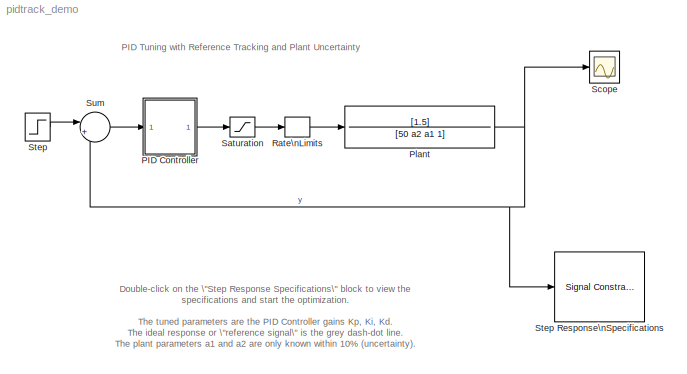
MODEL pidtrack_demo
KIND model
CONFIG PreLoadFcn = load pidtrack_demo
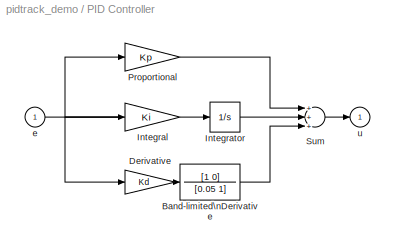
BLOCK [SubSystem] PID Controller
  MinAlgLoopOccurrences = off
  Ports = [1, 1]
  PropExecContextAcrossSSBoundary = on
  RTWSystemCode = Auto
  TreatAsAtomicUnit = off
BLOCK [TransferFcn] PID Controller/Band-limited\nDerivative
  Denominator = [0.05 1]
  Numerator = [1 0]
BLOCK [Gain] PID Controller/Derivative
  Gain = Kd
BLOCK [Gain] PID Controller/Integral
  Gain = Ki
BLOCK [Integrator] PID Controller/Integrator
  Ports = [1, 1]
BLOCK [Gain] PID Controller/Proportional
  Gain = Kp
BLOCK [Sum] PID Controller/Sum
  Inputs = +++
  Ports = [3, 1]
BLOCK [Inport] PID Controller/e
  IconDisplay = Port number
  LatchInput = off
BLOCK [Outport] PID Controller/u
  BusOutputAsStruct = off
  IconDisplay = Port number
  InitialOutput = 0
BLOCK [TransferFcn] Plant
  Denominator = [50 a2 a1 1]
  Numerator = [1.5]
BLOCK [RateLimiter] Rate\nLimits
  FallingSlewLimit = -0.8
  RisingSlewLimit = 0.8
BLOCK [Saturate] Saturation
  LowerLimit = -2
  UpperLimit = 2
BLOCK [Scope] Scope
  DataFormat = StructureWithTime
  NumInputPorts = 1
  Ports = [1]
BLOCK [Step] Step
  SampleTime = 0
  Time = 0
BLOCK [Reference] Step Response\nSpecifications  REF=srolib/Signal Constraint  (lib defined in mdl_d992e5ea460a)
  DialogPosition = [0.016875 0.36 0.37875 0.270833333333333]
  LogID = SRO_DataLog_1
  Ports = [1]
  SaveAs = pidtrack_optim
  SaveIn = workspace
  ShowPortLabels = on
  SourceBlock = srolib/Signal Constraint
  SourceType = Signal Constraint
BLOCK [Sum] Sum
  IconShape = round
  InputSameDT = off
  Inputs = |+-
  OutDataTypeMode = Inherit via internal rule
  Ports = [2, 1]
ANNOTATION (root): Double-click on the \"Step Response Specifications\" block to view the \nspecifications and start the optimization.\n\nThe tuned parameters are the PID Controller gains Kp, Ki, Kd. \nThe ideal response or \"reference signal\" is the grey dash-dot line. \nThe plant parameters a1 and a2 are only known within 10% (uncertainty).\n\nThe optimization seeks to minimize the gap between the actual and idea...<+97ch>
ANNOTATION (root): PID Tuning with Reference Tracking and Plant Uncertainty
LINE PID Controller/Band-limited\nDerivative:1 -> PID Controller/Sum:3
LINE PID Controller/Derivative:1 -> PID Controller/Band-limited\nDerivative:1
LINE PID Controller/Integral:1 -> PID Controller/Integrator:1
LINE PID Controller/Integrator:1 -> PID Controller/Sum:2
LINE PID Controller/Proportional:1 -> PID Controller/Sum:1
LINE PID Controller/Sum:1 -> PID Controller/u:1
NET PID Controller/e:1 -> PID Controller/Derivative:1, PID Controller/Integral:1, PID Controller/Proportional:1
LINE PID Controller:1 -> Saturation:1
NET Plant:1 -> Scope:1, Step Response\nSpecifications:1, Sum:2
LINE Rate\nLimits:1 -> Plant:1
LINE Saturation:1 -> Rate\nLimits:1
LINE Step:1 -> Sum:1
LINE Sum:1 -> PID Controller:1
note: NET lines group one-source signal fan-out (src -> all destinations, sorted); 1:1 wires keep LINE
